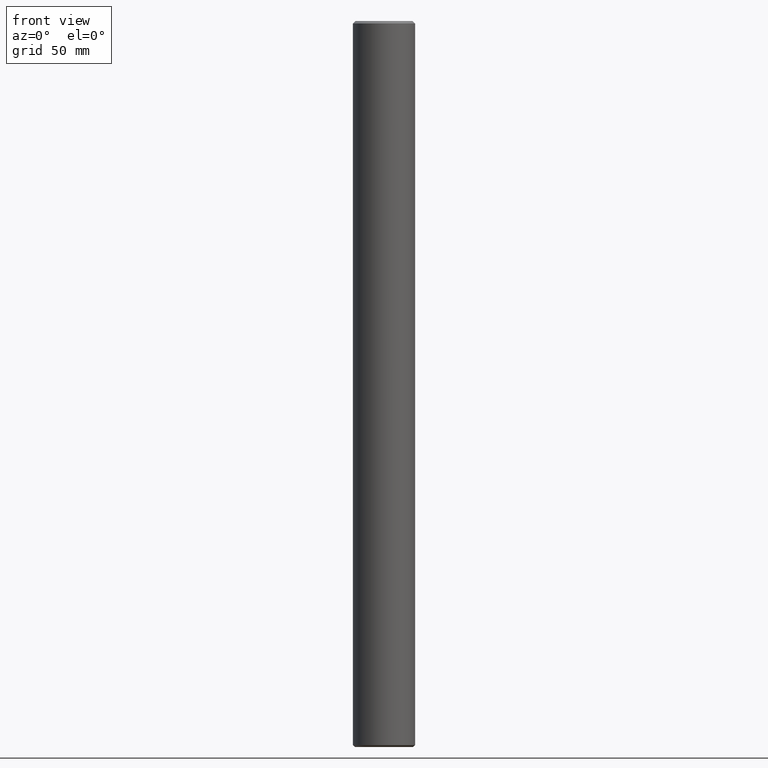
[diagram: clean part render]
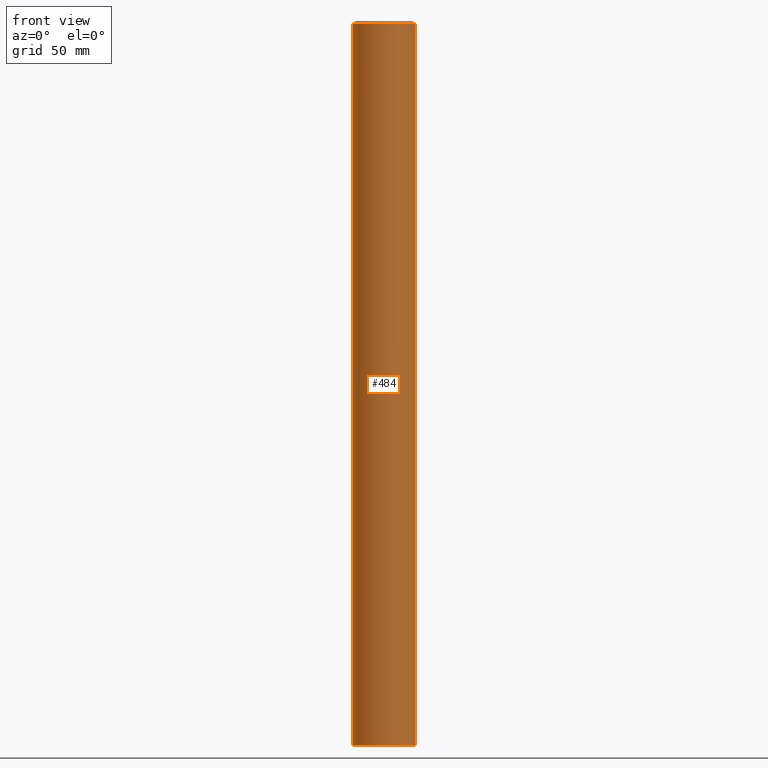
[diagram: same view with one face highlighted and labeled with its STEP entity id]
A machine part, front view. The second image highlights one B-rep face of the part: STEP entity #484.
In plain terms, the highlighted cylindrical surface (edge-blend (fillet) strip) has radius 12 mm, axis along (-0, -0, 1).
Its self-contained STEP definition (entity closure, byte-faithful):
#484=ADVANCED_FACE('NONE',(#1197),#1198,.T.);
#504=VERTEX_POINT('NONE',#1221);
#704=VERTEX_POINT('NONE',#1441);
#714=EDGE_CURVE('NONE',#704,#946,#1453,.T.);
#740=VERTEX_POINT('NONE',#1483);
#768=EDGE_CURVE('NONE',#504,#740,#1513,.T.);
#780=EDGE_CURVE('NONE',#850,#504,#1526,.T.);
#818=EDGE_CURVE('NONE',#850,#946,#1569,.T.);
#850=VERTEX_POINT('NONE',#1604);
#946=VERTEX_POINT('NONE',#1712);
#1030=EDGE_CURVE('NONE',#740,#704,#1803,.T.);
#1197=FACE_OUTER_BOUND('',#1999,.T.);
#1198=CYLINDRICAL_SURFACE('',#2000,12.0);
#1221=CARTESIAN_POINT('',(4.04282727087257E-014,-12.0,0.75000000000002));
#1441=CARTESIAN_POINT('',(12.0,0.0,279.0));
#1453=CIRCLE('',#2385,12.0);
#1483=CARTESIAN_POINT('',(12.0,0.0,0.75000000000002));
#1513=CIRCLE('',#2494,12.0);
#1526=CIRCLE('',#2542,12.0);
#1569=LINE('',#2602,#2603);
#1604=CARTESIAN_POINT('',(-12.0,1.46952762458685E-015,0.75000000000002));
#1712=CARTESIAN_POINT('',(-12.0,1.46952762458685E-015,279.0));
#1803=LINE('',#3008,#3009);
#1999=EDGE_LOOP('',(#3211,#3212,#3213,#3214,#3215));
#2000=AXIS2_PLACEMENT_3D('',#3216,#3217,#3218);
#2385=AXIS2_PLACEMENT_3D('',#3505,#3506,#3507);
#2494=AXIS2_PLACEMENT_3D('',#3578,#3579,#3580);
#2542=AXIS2_PLACEMENT_3D('',#3590,#3591,#3592);
#2602=CARTESIAN_POINT('',(-12.0,1.46952762458685E-015,1.38777878078145E-014));
#2603=VECTOR('',#3658,1000.0);
#3008=CARTESIAN_POINT('',(12.0,0.0,1.38777878078145E-014));
#3009=VECTOR('',#3917,1000.0);
#3211=ORIENTED_EDGE('',*,*,#818,.F.);
#3212=ORIENTED_EDGE('',*,*,#780,.T.);
#3213=ORIENTED_EDGE('',*,*,#768,.T.);
#3214=ORIENTED_EDGE('',*,*,#1030,.T.);
#3215=ORIENTED_EDGE('',*,*,#714,.T.);
#3216=CARTESIAN_POINT('',(0.0,0.0,1.38777878078145E-014));
#3217=DIRECTION('',(-0.0,-0.0,1.0));
#3218=DIRECTION('',(1.0,0.0,0.0));
#3505=CARTESIAN_POINT('',(0.0,0.0,279.0));
#3506=DIRECTION('',(0.0,0.0,-1.0));
#3507=DIRECTION('',(1.0,0.0,0.0));
#3578=CARTESIAN_POINT('',(0.0,0.0,0.75000000000002));
#3579=DIRECTION('',(0.0,0.0,1.0));
#3580=DIRECTION('',(3.49148336110938E-015,-1.0,-0.0));
#3590=CARTESIAN_POINT('',(0.0,0.0,0.75000000000002));
#3591=DIRECTION('',(0.0,0.0,1.0));
#3592=DIRECTION('',(3.49148336110938E-015,-1.0,-0.0));
#3658=DIRECTION('',(0.0,0.0,1.0));
#3917=DIRECTION('',(0.0,0.0,1.0));